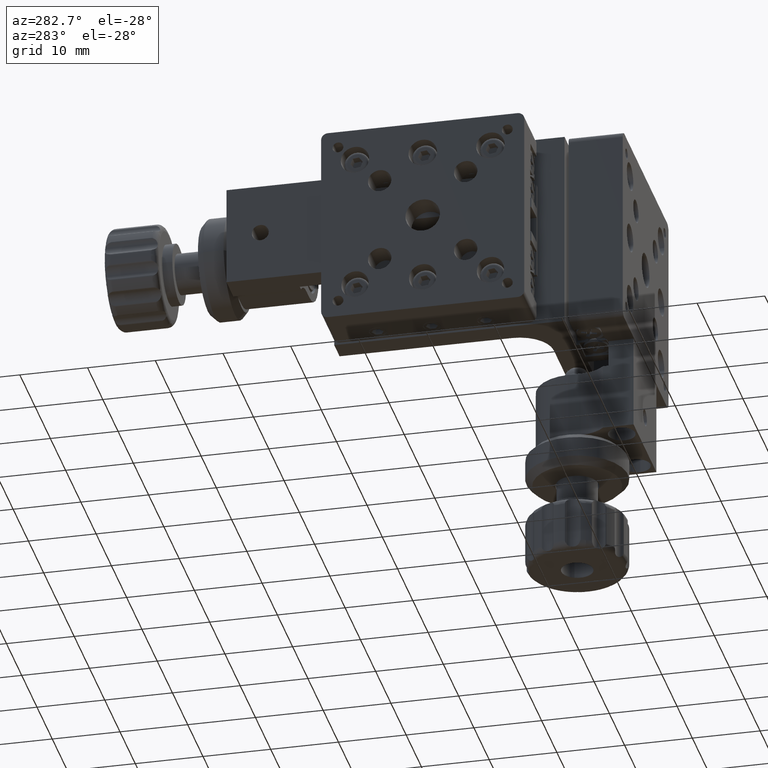
[diagram: clean part render]
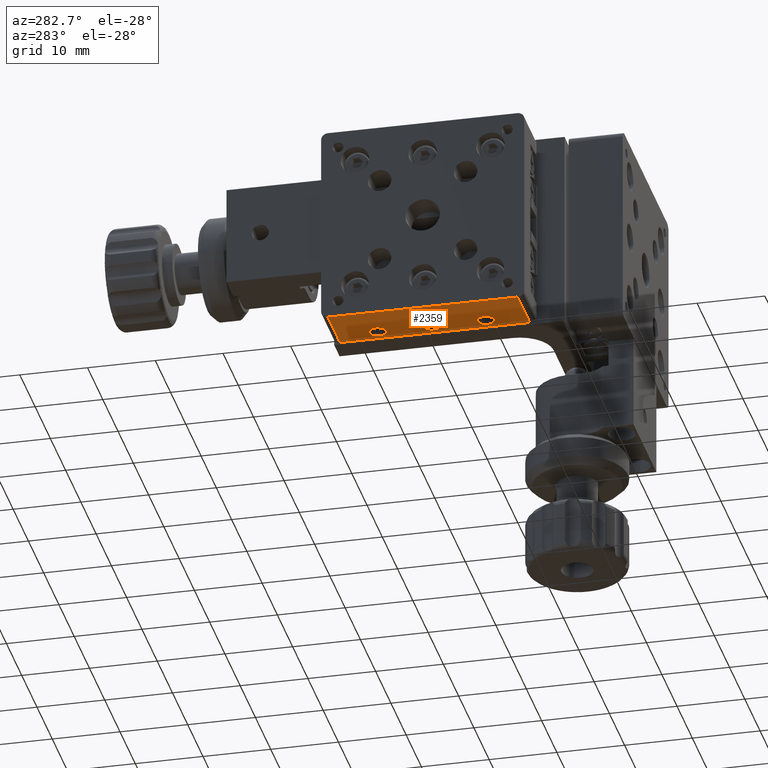
[diagram: same view with one face highlighted and labeled with its STEP entity id]
A machine part, auxiliary view. The second image highlights one B-rep face of the part: STEP entity #2359.
In plain terms, the highlighted planar face has unit normal (-0, -0, 1).
Its self-contained STEP definition (entity closure, byte-faithful):
#660 = LINE ( 'NONE', #25623, #56080 ) ;
#2220 = DIRECTION ( 'NONE',  ( -2.282530889443435200E-016, 1.000000000000000000, 1.964574336543731100E-016 ) ) ;
#2359 = ADVANCED_FACE ( 'NONE', ( #56272, #53540, #24167, #24792 ), #49991, .F. ) ;
#2704 = VERTEX_POINT ( 'NONE', #39926 ) ;
#2734 = VERTEX_POINT ( 'NONE', #40488 ) ;
#4190 = DIRECTION ( 'NONE',  ( 4.377269646856075900E-016, 1.964574336543732100E-016, -1.000000000000000000 ) ) ;
#4688 = ORIENTED_EDGE ( 'NONE', *, *, #16066, .T. ) ;
#6136 = EDGE_CURVE ( 'NONE', #2704, #9218, #27528, .T. ) ;
#6554 = DIRECTION ( 'NONE',  ( -1.000000000000000000, -2.282530889443424900E-016, -1.088248268176909500E-015 ) ) ;
#6692 = EDGE_LOOP ( 'NONE', ( #28574, #49700 ) ) ;
#8856 = EDGE_CURVE ( 'NONE', #45224, #2734, #18554, .T. ) ;
#9218 = VERTEX_POINT ( 'NONE', #39130 ) ;
#12779 = DIRECTION ( 'NONE',  ( -2.282530889443435200E-016, 1.000000000000000000, 1.964574336543731100E-016 ) ) ;
#13406 = ORIENTED_EDGE ( 'NONE', *, *, #29099, .F. ) ;
#14156 = DIRECTION ( 'NONE',  ( 4.377269646856075900E-016, 1.964574336543732100E-016, -1.000000000000000000 ) ) ;
#16066 = EDGE_CURVE ( 'NONE', #42807, #2704, #44992, .T. ) ;
#16428 = DIRECTION ( 'NONE',  ( 4.377269646856075900E-016, 1.964574336543732100E-016, -1.000000000000000000 ) ) ;
#16985 = EDGE_LOOP ( 'NONE', ( #13406, #29947 ) ) ;
#17855 = CARTESIAN_POINT ( 'NONE',  ( 1.400000000000014300, 16.24999999999998600, -15.00000000000001200 ) ) ;
#18554 = CIRCLE ( 'NONE', #44488, 1.249999999999987100 ) ;
#18586 = DIRECTION ( 'NONE',  ( 4.377269646856075900E-016, 1.964574336543732100E-016, -1.000000000000000000 ) ) ;
#18603 = ORIENTED_EDGE ( 'NONE', *, *, #27185, .T. ) ;
#18934 = CIRCLE ( 'NONE', #51972, 1.249999999999987100 ) ;
#19025 = VERTEX_POINT ( 'NONE', #25717 ) ;
#19233 = DIRECTION ( 'NONE',  ( 1.734723475976825100E-016, -1.000000000000000000, 0.0000000000000000000 ) ) ;
#19315 = ORIENTED_EDGE ( 'NONE', *, *, #21526, .F. ) ;
#20194 = CARTESIAN_POINT ( 'NONE',  ( -4.599999999999982800, 8.000000000000008900, -15.00000000000001400 ) ) ;
#20816 = CARTESIAN_POINT ( 'NONE',  ( 1.400000000000012100, 29.75000000000001800, -15.00000000000000900 ) ) ;
#21295 = ORIENTED_EDGE ( 'NONE', *, *, #41965, .F. ) ;
#21526 = EDGE_CURVE ( 'NONE', #52931, #9218, #660, .T. ) ;
#21532 = AXIS2_PLACEMENT_3D ( 'NONE', #32358, #41366, #36768 ) ;
#21738 = VECTOR ( 'NONE', #2220, 1000.000000000000000 ) ;
#21835 = AXIS2_PLACEMENT_3D ( 'NONE', #44412, #14156, #22998 ) ;
#22998 = DIRECTION ( 'NONE',  ( 1.734723475976825100E-016, -1.000000000000000000, 0.0000000000000000000 ) ) ;
#24152 = DIRECTION ( 'NONE',  ( 1.000000000000000000, 2.282530889443424900E-016, 1.088248268176909500E-015 ) ) ;
#24167 = FACE_BOUND ( 'NONE', #16985, .T. ) ;
#24792 = FACE_BOUND ( 'NONE', #6692, .T. ) ;
#25623 = CARTESIAN_POINT ( 'NONE',  ( 3.400000000000020800, 8.000000000000010700, -15.00000000000000500 ) ) ;
#25717 = CARTESIAN_POINT ( 'NONE',  ( 1.400000000000012600, 24.24999999999999600, -15.00000000000001100 ) ) ;
#25743 = DIRECTION ( 'NONE',  ( 1.734723475976825100E-016, -1.000000000000000000, 0.0000000000000000000 ) ) ;
#26591 = CARTESIAN_POINT ( 'NONE',  ( 1.400000000000015500, 15.00000000000000000, -15.00000000000001200 ) ) ;
#27185 = EDGE_CURVE ( 'NONE', #52931, #42807, #54745, .T. ) ;
#27528 = LINE ( 'NONE', #49781, #32988 ) ;
#27685 = CARTESIAN_POINT ( 'NONE',  ( 1.400000000000011900, 31.00000000000000700, -15.00000000000000900 ) ) ;
#28574 = ORIENTED_EDGE ( 'NONE', *, *, #40105, .F. ) ;
#29099 = EDGE_CURVE ( 'NONE', #2734, #45224, #34956, .T. ) ;
#29579 = CARTESIAN_POINT ( 'NONE',  ( 3.400000000000023000, 9.000000000000010700, -15.00000000000000500 ) ) ;
#29717 = ORIENTED_EDGE ( 'NONE', *, *, #37186, .F. ) ;
#29769 = CARTESIAN_POINT ( 'NONE',  ( 1.400000000000013700, 23.00000000000001100, -15.00000000000001100 ) ) ;
#29947 = ORIENTED_EDGE ( 'NONE', *, *, #8856, .F. ) ;
#31681 = ORIENTED_EDGE ( 'NONE', *, *, #6136, .T. ) ;
#31779 = EDGE_LOOP ( 'NONE', ( #29717, #21295 ) ) ;
#32358 = CARTESIAN_POINT ( 'NONE',  ( 3.400000000000020800, 8.000000000000010700, -15.00000000000000500 ) ) ;
#32433 = CARTESIAN_POINT ( 'NONE',  ( 1.400000000000013900, 21.75000000000002100, -15.00000000000001100 ) ) ;
#32988 = VECTOR ( 'NONE', #24152, 1000.000000000000000 ) ;
#34176 = CIRCLE ( 'NONE', #51555, 1.249999999999987100 ) ;
#34599 = CARTESIAN_POINT ( 'NONE',  ( 1.400000000000010800, 32.24999999999999300, -15.00000000000000900 ) ) ;
#34956 = CIRCLE ( 'NONE', #21835, 1.249999999999987100 ) ;
#36282 = VECTOR ( 'NONE', #6554, 1000.000000000000000 ) ;
#36468 = DIRECTION ( 'NONE',  ( 4.377269646856075900E-016, 1.964574336543732100E-016, -1.000000000000000000 ) ) ;
#36768 = DIRECTION ( 'NONE',  ( -1.000000000000000000, -2.282530889443424900E-016, -1.088248268176909500E-015 ) ) ;
#37186 = EDGE_CURVE ( 'NONE', #48293, #56169, #55648, .T. ) ;
#39130 = CARTESIAN_POINT ( 'NONE',  ( 3.400000000000014100, 37.00000000000000700, -14.99999999999999600 ) ) ;
#39926 = CARTESIAN_POINT ( 'NONE',  ( -4.599999999999989900, 37.00000000000000700, -15.00000000000000700 ) ) ;
#40105 = EDGE_CURVE ( 'NONE', #45989, #19025, #34176, .T. ) ;
#40488 = CARTESIAN_POINT ( 'NONE',  ( 1.400000000000015700, 13.75000000000001200, -15.00000000000001200 ) ) ;
#41366 = DIRECTION ( 'NONE',  ( -1.088248268176909500E-015, -1.964574336543733500E-016, 1.000000000000000000 ) ) ;
#41965 = EDGE_CURVE ( 'NONE', #56169, #48293, #18934, .T. ) ;
#42807 = VERTEX_POINT ( 'NONE', #54202 ) ;
#43140 = AXIS2_PLACEMENT_3D ( 'NONE', #48858, #18586, #44995 ) ;
#44412 = CARTESIAN_POINT ( 'NONE',  ( 1.400000000000015500, 15.00000000000000000, -15.00000000000001200 ) ) ;
#44488 = AXIS2_PLACEMENT_3D ( 'NONE', #26591, #4190, #47995 ) ;
#44992 = LINE ( 'NONE', #20194, #21738 ) ;
#44995 = DIRECTION ( 'NONE',  ( 1.734723475976825100E-016, -1.000000000000000000, 0.0000000000000000000 ) ) ;
#45115 = CARTESIAN_POINT ( 'NONE',  ( 3.400000000000023000, 9.000000000000010700, -15.00000000000000500 ) ) ;
#45224 = VERTEX_POINT ( 'NONE', #17855 ) ;
#45989 = VERTEX_POINT ( 'NONE', #32433 ) ;
#47058 = CARTESIAN_POINT ( 'NONE',  ( 1.400000000000011900, 31.00000000000000700, -15.00000000000000900 ) ) ;
#47266 = DIRECTION ( 'NONE',  ( 1.734723475976825100E-016, -1.000000000000000000, 0.0000000000000000000 ) ) ;
#47995 = DIRECTION ( 'NONE',  ( 1.734723475976825100E-016, -1.000000000000000000, 0.0000000000000000000 ) ) ;
#48293 = VERTEX_POINT ( 'NONE', #20816 ) ;
#48858 = CARTESIAN_POINT ( 'NONE',  ( 1.400000000000013700, 23.00000000000001100, -15.00000000000001100 ) ) ;
#49700 = ORIENTED_EDGE ( 'NONE', *, *, #51355, .F. ) ;
#49781 = CARTESIAN_POINT ( 'NONE',  ( 3.400000000000014100, 37.00000000000000700, -14.99999999999999600 ) ) ;
#49991 = PLANE ( 'NONE',  #21532 ) ;
#51355 = EDGE_CURVE ( 'NONE', #19025, #45989, #53044, .T. ) ;
#51555 = AXIS2_PLACEMENT_3D ( 'NONE', #29769, #56313, #25743 ) ;
#51972 = AXIS2_PLACEMENT_3D ( 'NONE', #27685, #36468, #19233 ) ;
#52152 = AXIS2_PLACEMENT_3D ( 'NONE', #47058, #16428, #47266 ) ;
#52324 = EDGE_LOOP ( 'NONE', ( #4688, #31681, #19315, #18603 ) ) ;
#52931 = VERTEX_POINT ( 'NONE', #45115 ) ;
#53044 = CIRCLE ( 'NONE', #43140, 1.249999999999987100 ) ;
#53540 = FACE_OUTER_BOUND ( 'NONE', #52324, .T. ) ;
#54202 = CARTESIAN_POINT ( 'NONE',  ( -4.599999999999982800, 9.000000000000008900, -15.00000000000001400 ) ) ;
#54745 = LINE ( 'NONE', #29579, #36282 ) ;
#55648 = CIRCLE ( 'NONE', #52152, 1.249999999999987100 ) ;
#56080 = VECTOR ( 'NONE', #12779, 1000.000000000000000 ) ;
#56169 = VERTEX_POINT ( 'NONE', #34599 ) ;
#56272 = FACE_BOUND ( 'NONE', #31779, .T. ) ;
#56313 = DIRECTION ( 'NONE',  ( 4.377269646856075900E-016, 1.964574336543732100E-016, -1.000000000000000000 ) ) ;